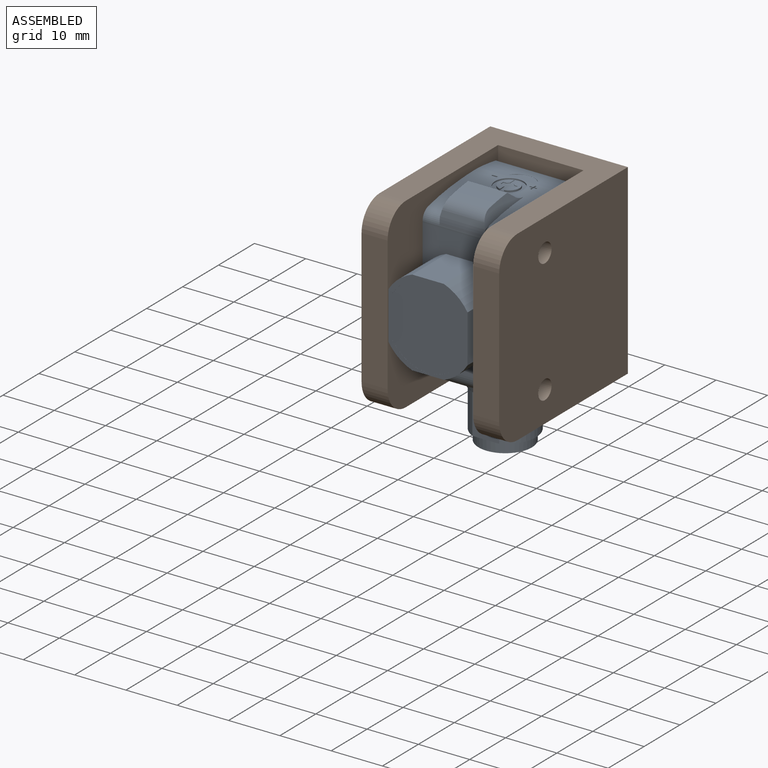
[diagram: assembled view]
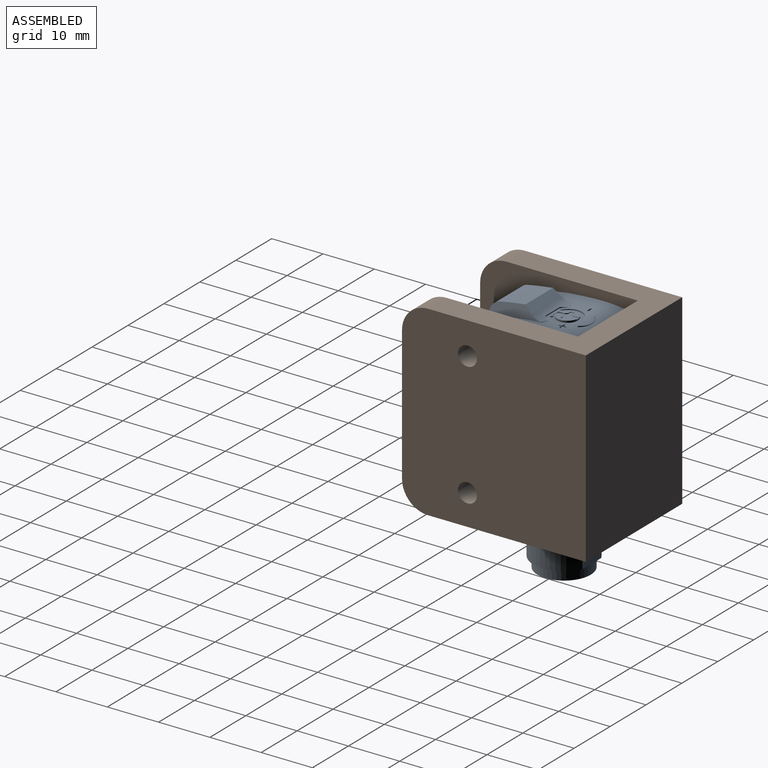
[diagram: assembled view, second angle]
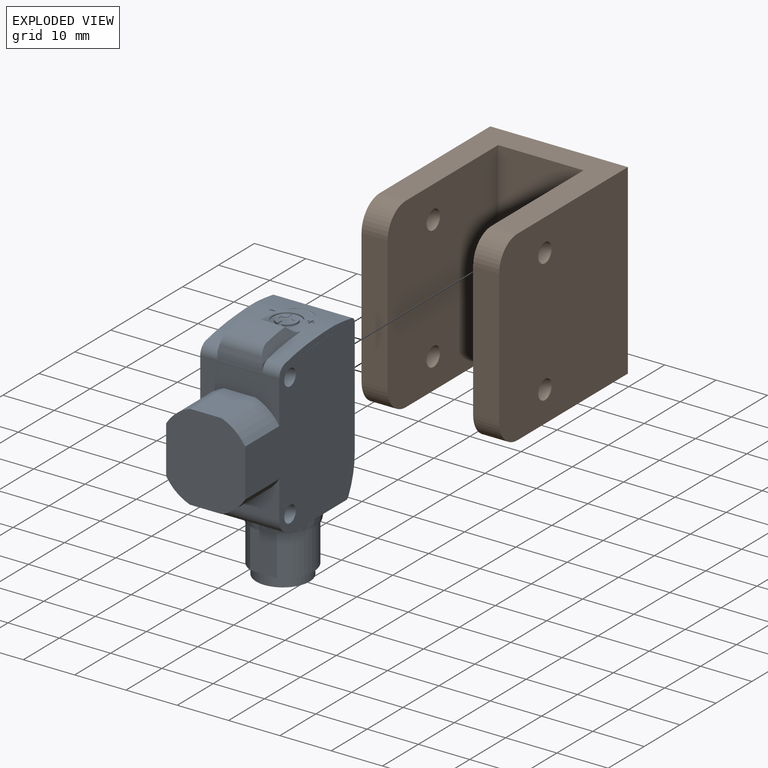
[diagram: exploded view]
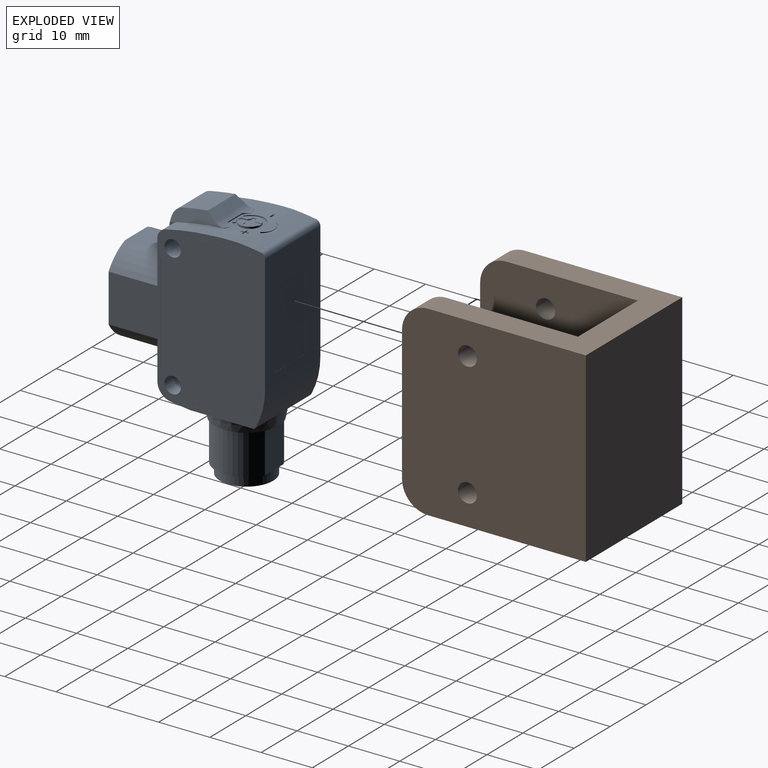
[diagram: exploded view, second angle]
ASSEMBLY  parts=2 mates=2
PART A: 270 faces, bbox 15.5x30.6x46.8 mm
  f0: cylinder r=4mm len=10mm, axis (0,0,-1), area 251.3mm2, adj f44,f127
  f1: cylinder r=2.05mm len=4.1mm, axis (0,0,1), area 4.3mm2, adj f10,f101,f254,f255,f261,f262,f263,f269
  f2: cylinder r=5.2mm len=10.4mm, axis (0,0,1), area 32.7mm2, adj f43,f44
  f3: cylinder r=5.25mm len=10.5mm, axis (0,0,1), area 33mm2, adj f42,f43
  f4: cone r=6.96mm half-angle=11.3deg, axis (0,0,1), area 105.6mm2, adj f22,f26,f27,f40
  f5: cylinder r=1.6mm len=15.4mm, axis (-1,0,0), area 154.8mm2, adj f16,f23
  f6: cylinder r=1.6mm len=15.4mm, axis (-1,0,0), area 154.8mm2, adj f16,f23
  f7: cylinder r=2.13mm len=3.29mm, axis (-1,0,0), area 9.9mm2, adj f14,f23,f32,f130
  f8: cylinder r=2.13mm len=3.29mm, axis (-1,0,0), area 9.9mm2, adj f12,f14,f16,f136
  f9: cylinder r=2.13mm len=8.8mm, axis (-1,0,0), area 3.6mm2, adj f131,f137,f245,f253
  f10: cylinder r=51.85mm len=4.1mm, axis (-1,0,0), area 4.9mm2, adj f1,f255,f256,f257,f258,f259,f260,f261
  f11: cylinder r=50.33mm len=5.36mm, axis (-1,0,0), area 3.1mm2, adj f13,f15,f18,f19,f97,f98,f99,f100
  f12: cylinder r=50.33mm len=9.06mm, axis (-1,0,0), area 30.2mm2, adj f8,f15,f16,f17,f134,f136,f137,f243
  f13: cylinder r=51.85mm len=7.25mm, axis (-1,0,0), area 24.8mm2, adj f11,f23,f31,f32,f100,f102,f103,f104
  f14: plane 15.4x8.09mm, normal (0,-1,0), area 53.7mm2, adj f7,f8,f16,f23,f33,f34,f35,f129
  f15: cylinder r=51.85mm len=7.65mm, axis (-1,0,0), area 27.3mm2, adj f11,f12,f16,f31,f100,f115,f116,f117
  f16: plane 32.01x30.5mm, normal (-1,0,0), area 712.6mm2, adj f5,f6,f8,f12,f14,f15,f20,f24
  f17: cylinder r=2.13mm len=0.02mm, axis (-1,0,0), area 0mm2, adj f12,f137,f243
  f18: cylinder r=51.85mm len=0.78mm, axis (-1,0,0), area 0.1mm2, adj f11,f97,f98
  f19: cylinder r=51.85mm len=0.78mm, axis (-1,0,0), area 0.1mm2, adj f11,f98,f99
  f20: plane 22.99x15.4mm, normal (0,1,0), area 215.1mm2, adj f16,f23,f29,f30,f52,f53,f54,f55
  f21: cylinder r=6mm len=10.8mm, axis (0,0,1), area 107.5mm2, adj f40,f42,f45,f46
  f22: plane 12.4x7.7mm, normal (0,0,-1), area 26mm2, adj f4,f23,f26,f28
  f23: plane 32.01x30.5mm, normal (1,0,0), area 202.3mm2, adj f5,f6,f7,f13,f14,f20,f22,f24
  f24: plane 15.4x7.39mm, normal (0,-1,0), area 68.8mm2, adj f16,f23,f25,f36,f37,f38
  f25: cylinder r=3mm len=15.4mm, axis (-1,0,0), area 66.8mm2, adj f16,f23,f24,f26
  f26: plane 15.48x3.85mm, normal (0,-0.12,-0.99), area 52.1mm2, adj f4,f16,f22,f23,f25,f27
  f27: plane 12.4x7.7mm, normal (0,0,-1), area 26mm2, adj f4,f16,f26,f28
  f28: cylinder r=1.25mm len=15.4mm, axis (-1,0,0), area 11.4mm2, adj f16,f22,f23,f27,f29
  f29: cylinder r=15mm len=15.4mm, axis (-1,0,0), area 111.2mm2, adj f16,f20,f23,f28
  f30: cylinder r=1mm len=15.4mm, axis (-1,0,0), area 21.9mm2, adj f16,f20,f23,f31
  f31: cylinder r=50.5mm len=15.4mm, axis (-1,0,0), area 67.5mm2, adj f13,f15,f16,f23,f30,f100,f120,f121
  f32: cylinder r=50.33mm len=9.06mm, axis (-1,0,0), area 30.2mm2, adj f7,f13,f23,f130
  f33: cylinder r=9mm len=9.5mm, axis (0,-1,0), area 57.7mm2, adj f14,f16,f34,f39
  f34: plane 9.5x6.2mm, normal (0,0,1), area 58.9mm2, adj f14,f33,f35,f39
  f35: cylinder r=9mm len=9.5mm, axis (0,-1,0), area 57.7mm2, adj f14,f23,f34,f39
  f36: cylinder r=9mm len=9.5mm, axis (0,-1,0), area 57.7mm2, adj f23,f24,f37,f39
  f37: plane 9.5x6.2mm, normal (0,0,-1), area 58.9mm2, adj f24,f36,f38,f39
  f38: cylinder r=9mm len=9.5mm, axis (0,-1,0), area 57.7mm2, adj f16,f24,f37,f39
  f39: plane 16.9x15.4mm, normal (0,-1,0), area 42.8mm2, adj f16,f23,f33,f34,f35,f36,f37,f38
  f40: plane 12.6x12.6mm, normal (0,0,-1), area 15.8mm2, adj f4,f21,f41,f45,f46
  f41: cylinder r=6mm len=10.8mm, axis (0,0,1), area 107.5mm2, adj f40,f42,f45,f46
  f42: plane 12x10.8mm, normal (0,0,-1), area 22.3mm2, adj f3,f21,f41,f45,f46
  f43: plane 10.5x10.5mm, normal (0,0,-1), area 1.6mm2, adj f2,f3
  f44: plane 10.4x10.4mm, normal (0,0,-1), area 34.7mm2, adj f0,f2
  f45: plane 8x5.23mm, normal (0,-1,0), area 41.8mm2, adj f21,f40,f41,f42
  f46: plane 8x5.23mm, normal (0,1,0), area 41.8mm2, adj f21,f40,f41,f42
  f47: cylinder r=8.05mm len=13.8mm, axis (0,-1,0), area 0.2mm2, adj f39,f48,f50,f51
  f48: plane 8.29x0.01mm, normal (-1,0,0), area 0.1mm2, adj f39,f47,f49,f51
  f49: cylinder r=8.05mm len=13.8mm, axis (0,-1,0), area 0.2mm2, adj f39,f48,f50,f51
  f50: plane 8.29x0.01mm, normal (1,0,0), area 0.1mm2, adj f39,f47,f49,f51
  f51: plane 16.1x13.8mm, normal (0,-1,0), area 190.7mm2, adj f47,f48,f49,f50
  f52: plane 13.59x0.01mm, normal (1,0,0), area 0.1mm2, adj f20,f53,f59,f60
  f53: extruded ~0.66x0.54mm, area 0mm2, adj f20,f52,f54,f60
  f54: plane 8.28x0.01mm, normal (0,0,1), area 0.1mm2, adj f20,f53,f55,f60
  f55: extruded ~1.09x0.53mm, area 0mm2, adj f20,f54,f56,f60
  f56: plane 12.72x0.01mm, normal (-1,0,0), area 0.1mm2, adj f20,f55,f57,f60
  f57: extruded ~1.09x0.53mm, area 0mm2, adj f20,f56,f58,f60
  f58: plane 8.28x0.01mm, normal (0,0,-1), area 0.1mm2, adj f20,f57,f59,f60
  f59: extruded ~0.66x0.54mm, area 0mm2, adj f20,f52,f58,f60
  f60: plane 14.9x9.35mm, normal (0,1,0), area 139mm2, adj f52,f53,f54,f55,f56,f57,f58,f59
  f61: cylinder r=0.45mm len=0.45mm, axis (1,0,0), area 0mm2, adj f23,f62,f77,f78
  f62: plane 22.43x0.01mm, normal (0,-1,0), area 0.2mm2, adj f23,f61,f63,f78
  f63: cylinder r=13.8mm len=6.39mm, axis (1,0,0), area 0.1mm2, adj f23,f62,f64,f78
  f64: cylinder r=0.45mm len=0.4mm, axis (1,0,0), area 0mm2, adj f23,f63,f65,f78
  f65: plane 12.18x0.01mm, normal (0,0,1), area 0.1mm2, adj f23,f64,f66,f78
  f66: cylinder r=0.45mm len=0.45mm, axis (1,0,0), area 0mm2, adj f23,f65,f67,f78
  f67: plane 2.15x0.01mm, normal (0,1,0), area 0mm2, adj f23,f66,f68,f78
  f68: cylinder r=2.2mm len=2.2mm, axis (1,0,0), area 0mm2, adj f23,f67,f69,f78
  f69: plane 1.9x0.01mm, normal (0,0,1), area 0mm2, adj f23,f68,f70,f78
  f70: cylinder r=0.45mm len=0.45mm, axis (1,0,0), area 0mm2, adj f23,f69,f71,f78
  f71: plane 18.8x0.01mm, normal (0,1,0), area 0.2mm2, adj f23,f70,f72,f78
  f72: cylinder r=0.45mm len=0.45mm, axis (1,0,0), area 0mm2, adj f23,f71,f73,f78
  f73: plane 1.9x0.01mm, normal (0,0,-1), area 0mm2, adj f23,f72,f74,f78
  f74: cylinder r=2.2mm len=2.2mm, axis (1,0,0), area 0mm2, adj f23,f73,f75,f78
  f75: plane 2.27x0.01mm, normal (0,1,0), area 0mm2, adj f23,f74,f76,f78
  f76: cylinder r=0.45mm len=0.45mm, axis (1,0,0), area 0mm2, adj f23,f75,f77,f78
  f77: cylinder r=49.3mm len=13.83mm, axis (1,0,0), area 0.1mm2, adj f23,f61,f76,f78
  f78: plane 29.95x19.15mm, normal (1,0,0), area 9.3mm2, adj f61,f62,f63,f64,f65,f66,f67,f68
  f79: cylinder r=0.35mm len=0.35mm, axis (1,0,0), area 0mm2, adj f78,f80,f95,f96
  f80: plane 22.43x0.01mm, normal (0,1,0), area 0.2mm2, adj f78,f79,f81,f96
  f81: cylinder r=13.7mm len=6.35mm, axis (1,0,0), area 0.1mm2, adj f78,f80,f82,f96
  f82: cylinder r=0.35mm len=0.31mm, axis (1,0,0), area 0mm2, adj f78,f81,f83,f96
  f83: plane 12.18x0.01mm, normal (0,0,-1), area 0.1mm2, adj f78,f82,f84,f96
  f84: cylinder r=0.35mm len=0.35mm, axis (1,0,0), area 0mm2, adj f78,f83,f85,f96
  f85: plane 2.15x0.01mm, normal (0,-1,0), area 0mm2, adj f78,f84,f86,f96
  f86: cylinder r=2.3mm len=2.3mm, axis (1,0,0), area 0mm2, adj f78,f85,f87,f96
  f87: plane 1.9x0.01mm, normal (0,0,-1), area 0mm2, adj f78,f86,f88,f96
  f88: cylinder r=0.35mm len=0.35mm, axis (1,0,0), area 0mm2, adj f78,f87,f89,f96
  f89: plane 18.8x0.01mm, normal (0,-1,0), area 0.2mm2, adj f78,f88,f90,f96
  f90: cylinder r=0.35mm len=0.35mm, axis (1,0,0), area 0mm2, adj f78,f89,f91,f96
  f91: plane 1.9x0.01mm, normal (0,0,1), area 0mm2, adj f78,f90,f92,f96
  f92: cylinder r=2.3mm len=2.3mm, axis (1,0,0), area 0mm2, adj f78,f91,f93,f96
  f93: plane 2.27x0.01mm, normal (0,-1,0), area 0mm2, adj f78,f92,f94,f96
  f94: cylinder r=0.35mm len=0.35mm, axis (1,0,0), area 0mm2, adj f78,f93,f95,f96
  f95: cylinder r=49.2mm len=13.8mm, axis (1,0,0), area 0.1mm2, adj f78,f79,f94,f96
  f96: plane 29.75x18.95mm, normal (1,0,0), area 513.2mm2, adj f79,f80,f81,f82,f83,f84,f85,f86
  f97: plane 0.41x0.29mm, normal (0.81,0.59,0), area 0.1mm2, adj f11,f18,f98,f100,f101
  f98: cylinder r=2.3mm len=2.37mm, axis (0,0,1), area 0.3mm2, adj f11,f18,f19,f97,f99,f101
  f99: plane 0.41x0.29mm, normal (-0.81,0.59,0), area 0.1mm2, adj f11,f19,f98,f100,f101
  f100: cylinder r=2.8mm len=5.6mm, axis (0,0,1), area 3.2mm2, adj f11,f13,f15,f31,f97,f99,f101
  f101: plane 5.6x5.18mm, normal (0,0,1), area 10mm2, adj f1,f97,f98,f99,f100
  f102: plane 0.27x0.25mm, normal (0,1,0), area 0.1mm2, adj f13,f103,f113,f114
  f103: plane 0.58x0.26mm, normal (1,0,0), area 0.1mm2, adj f13,f102,f104,f114
  f104: plane 0.58x0.26mm, normal (0,1,0), area 0.1mm2, adj f13,f103,f105,f114
  f105: plane 0.27x0.26mm, normal (1,0,0), area 0.1mm2, adj f13,f104,f106,f114
  f106: plane 0.58x0.26mm, normal (0,-1,0), area 0.1mm2, adj f13,f105,f107,f114
  f107: plane 0.58x0.26mm, normal (1,0,0), area 0.2mm2, adj f13,f106,f108,f114
  f108: plane 0.27x0.26mm, normal (0,-1,0), area 0.1mm2, adj f13,f107,f109,f114
  f109: plane 0.58x0.26mm, normal (-1,0,0), area 0.2mm2, adj f13,f108,f110,f114
  f110: plane 0.58x0.26mm, normal (0,-1,0), area 0.1mm2, adj f13,f109,f111,f114
  f111: plane 0.27x0.26mm, normal (-1,0,0), area 0.1mm2, adj f13,f110,f112,f114
  f112: plane 0.58x0.26mm, normal (0,1,0), area 0.1mm2, adj f13,f111,f113,f114
  f113: plane 0.58x0.26mm, normal (-1,0,0), area 0.1mm2, adj f13,f102,f112,f114
  f114: plane 1.43x1.42mm, normal (0,0,1), area 0.7mm2, adj f102,f103,f104,f105,f106,f107,f108,f109
  f115: plane 1.05x0.26mm, normal (0,-1,0), area 0.3mm2, adj f15,f116,f118,f119
  f116: plane 0.32x0.26mm, normal (-1,0,0), area 0.1mm2, adj f15,f115,f117,f119
  f117: plane 1.05x0.26mm, normal (0,1,0), area 0.3mm2, adj f15,f116,f118,f119
  f118: plane 0.32x0.26mm, normal (1,0,0), area 0.1mm2, adj f15,f115,f117,f119
  f119: plane 1.05x0.32mm, normal (0,0,1), area 0.3mm2, adj f115,f116,f117,f118
  f120: extruded ~2.38x1.17mm, area 0.2mm2, adj f31,f121,f125,f126
  f121: plane 0.66x0.62mm, normal (-0.69,0.73,0), area 0.2mm2, adj f31,f120,f122,f126
  f122: extruded ~2.11x1.15mm, area 0.3mm2, adj f31,f121,f123,f126
  f123: extruded ~2.29x1.12mm, area 0.3mm2, adj f31,f122,f124,f126
  f124: extruded ~0.19x0.05mm, area 0mm2, adj f31,f123,f125,f126
  f125: extruded ~2.73x1.75mm, area 0.3mm2, adj f31,f120,f124,f126
  f126: plane 5.11x1.8mm, normal (0,0,1), area 3.2mm2, adj f120,f121,f122,f123,f124,f125
  f127: plane 8x8mm, normal (0,0,-1), area 50.3mm2, adj f0
  f128: plane 1.13x0.01mm, normal (0,-1,0), area 0mm2, adj f13,f130,f131,f132
  f129: plane 1.01x0.01mm, normal (0,0,1), area 0mm2, adj f14,f130,f131,f133
  f130: plane 10.62x7.24mm, normal (-1,0,0), area 15.5mm2, adj f7,f13,f14,f32,f128,f129,f132,f133
  f131: plane 10.62x7.24mm, normal (1,0,0), area 16mm2, adj f9,f13,f128,f129,f132,f133,f245,f246
  f132: cylinder r=50.33mm len=9.59mm, axis (-1,0,0), area 0.1mm2, adj f128,f130,f131,f133
  f133: plane 4.78x0.01mm, normal (0,-1,0), area 0mm2, adj f129,f130,f131,f132
  f134: plane 1.13x0.01mm, normal (0,-1,0), area 0mm2, adj f12,f136,f137,f138
  f135: plane 1.01x0.01mm, normal (0,0,1), area 0mm2, adj f14,f136,f137,f139
  f136: plane 10.4x7.23mm, normal (1,0,0), area 15.3mm2, adj f8,f12,f14,f134,f135,f138,f139
  f137: plane 10.4x7.23mm, normal (-1,0,0), area 15.8mm2, adj f9,f12,f17,f134,f135,f138,f139,f243
  f138: cylinder r=50.33mm len=9.38mm, axis (1,0,0), area 0.1mm2, adj f134,f136,f137,f139
  f139: plane 4.78x0.01mm, normal (0,-1,0), area 0mm2, adj f135,f136,f137,f138
  f140: extruded ~0.16x0.09mm, area 0mm2, adj f16,f141,f151,f152
  f141: plane 0.87x0.01mm, normal (0,-1,0), area 0mm2, adj f16,f140,f142,f152
  f142: extruded ~0.16x0.09mm, area 0mm2, adj f16,f141,f143,f152
  f143: plane 0.65x0.01mm, normal (0,0,-1), area 0mm2, adj f16,f142,f144,f152
  f144: cylinder r=948.99mm len=0.39mm, axis (1,0,0), area 0mm2, adj f16,f143,f145,f152
  f145: plane 1.13x0.01mm, normal (0,0,1), area 0mm2, adj f16,f144,f146,f152
  f146: extruded ~0.5x0.27mm, area 0mm2, adj f16,f145,f147,f152
  f147: plane 0.96x0.01mm, normal (0,1,0), area 0mm2, adj f16,f146,f148,f152
  f148: extruded ~0.5x0.27mm, area 0mm2, adj f16,f147,f149,f152
  f149: plane 1.12x0.01mm, normal (0,0,-1), area 0mm2, adj f16,f148,f150,f152
  f150: plane 0.39x0.01mm, normal (0,-1,0), area 0mm2, adj f16,f149,f151,f152
  f151: plane 0.93x0.01mm, normal (0,0,1), area 0mm2, adj f16,f140,f150,f152
  f152: plane 1.97x1.4mm, normal (-1,0,0), area 1.4mm2, adj f140,f141,f142,f143,f144,f145,f146,f147
  f153: plane 2.06x1.42mm, normal (0,-0.82,-0.57), area 0mm2, adj f16,f154,f156,f157
  f154: plane 1.15x0.01mm, normal (0,0,1), area 0mm2, adj f16,f153,f155,f157
  f155: extruded ~0.5x0.27mm, area 0mm2, adj f16,f154,f156,f157
  f156: plane 1.56x0.01mm, normal (0,1,0), area 0mm2, adj f16,f153,f155,f157
  f157: plane 2.06x1.42mm, normal (-1,0,0), area 1.4mm2, adj f153,f154,f155,f156
  f158: cylinder r=952.12mm len=0.39mm, axis (1,0,0), area 0mm2, adj f16,f159,f173,f174
  f159: plane 1.16x0.01mm, normal (0,0,1), area 0mm2, adj f16,f158,f160,f174
  f160: extruded ~0.5x0.27mm, area 0mm2, adj f16,f159,f161,f174
  f161: plane 0.97x0.01mm, normal (0,1,0), area 0mm2, adj f16,f160,f162,f174
  f162: extruded ~0.5x0.27mm, area 0mm2, adj f16,f161,f163,f174
  f163: plane 1.15x0.01mm, normal (0,0,-1), area 0mm2, adj f16,f162,f164,f174
  f164: plane 0.39x0.01mm, normal (0,-1,0), area 0mm2, adj f16,f163,f165,f174
  f165: plane 0.93x0.01mm, normal (0,0,1), area 0mm2, adj f16,f164,f166,f174
  f166: extruded ~0.17x0.09mm, area 0mm2, adj f16,f165,f167,f174
  f167: plane 0.27x0.01mm, normal (0,-1,0), area 0mm2, adj f16,f166,f168,f174
  f168: plane 0.95x0.01mm, normal (0,0,-1), area 0mm2, adj f16,f167,f169,f174
  f169: plane 0.33x0.01mm, normal (0,-1,0), area 0mm2, adj f16,f168,f170,f174
  f170: plane 0.95x0.01mm, normal (0,0,1), area 0mm2, adj f16,f169,f171,f174
  f171: plane 0.27x0.01mm, normal (0,-1,0), area 0mm2, adj f16,f170,f172,f174
  f172: extruded ~0.16x0.09mm, area 0mm2, adj f16,f171,f173,f174
  f173: plane 0.66x0.01mm, normal (0,0,-1), area 0mm2, adj f16,f158,f172,f174
  f174: plane 1.97x1.43mm, normal (-1,0,0), area 1.8mm2, adj f158,f159,f160,f161,f162,f163,f164,f165
  f175: plane 0.39x0.01mm, normal (0,-1,0), area 0mm2, adj f16,f176,f190,f191
  f176: plane 0.93x0.01mm, normal (0,0,1), area 0mm2, adj f16,f175,f177,f191
  f177: extruded ~0.17x0.09mm, area 0mm2, adj f16,f176,f178,f191
  f178: plane 0.27x0.01mm, normal (0,-1,0), area 0mm2, adj f16,f177,f179,f191
  f179: plane 0.95x0.01mm, normal (0,0,-1), area 0mm2, adj f16,f178,f180,f191
  f180: plane 0.33x0.01mm, normal (0,-1,0), area 0mm2, adj f16,f179,f181,f191
  f181: plane 0.95x0.01mm, normal (0,0,1), area 0mm2, adj f16,f180,f182,f191
  f182: plane 0.27x0.01mm, normal (0,-1,0), area 0mm2, adj f16,f181,f183,f191
  f183: extruded ~0.16x0.09mm, area 0mm2, adj f16,f182,f184,f191
  f184: plane 0.66x0.01mm, normal (0,0,-1), area 0mm2, adj f16,f183,f185,f191
  f185: cylinder r=951.75mm len=0.39mm, axis (1,0,0), area 0mm2, adj f16,f184,f186,f191
  f186: plane 1.16x0.01mm, normal (0,0,1), area 0mm2, adj f16,f185,f187,f191
  f187: extruded ~0.5x0.27mm, area 0mm2, adj f16,f186,f188,f191
  f188: plane 0.97x0.01mm, normal (0,1,0), area 0mm2, adj f16,f187,f189,f191
  f189: extruded ~0.5x0.27mm, area 0mm2, adj f16,f188,f190,f191
  f190: plane 1.15x0.01mm, normal (0,0,-1), area 0mm2, adj f16,f175,f189,f191
  f191: plane 1.97x1.43mm, normal (-1,0,0), area 1.8mm2, adj f175,f176,f177,f178,f179,f180,f181,f182
  f192: cylinder r=951.16mm len=0.4mm, axis (1,0,0), area 0mm2, adj f16,f193,f207,f208
  f193: plane 1.17x0.01mm, normal (0,0,1), area 0mm2, adj f16,f192,f194,f208
  f194: extruded ~0.51x0.28mm, area 0mm2, adj f16,f193,f195,f208
  f195: plane 0.97x0.01mm, normal (0,1,0), area 0mm2, adj f16,f194,f196,f208
  f196: extruded ~0.51x0.28mm, area 0mm2, adj f16,f195,f197,f208
  f197: plane 1.15x0.01mm, normal (0,0,-1), area 0mm2, adj f16,f196,f198,f208
  f198: plane 0.4x0.01mm, normal (0,-1,0), area 0mm2, adj f16,f197,f199,f208
  f199: plane 0.94x0.01mm, normal (0,0,1), area 0mm2, adj f16,f198,f200,f208
  f200: extruded ~0.16x0.08mm, area 0mm2, adj f16,f199,f201,f208
  f201: plane 0.26x0.01mm, normal (0,-1,0), area 0mm2, adj f16,f200,f202,f208
  f202: plane 0.95x0.01mm, normal (0,0,-1), area 0mm2, adj f16,f201,f203,f208
  f203: plane 0.34x0.01mm, normal (0,-1,0), area 0mm2, adj f16,f202,f204,f208
  f204: plane 0.95x0.01mm, normal (0,0,1), area 0mm2, adj f16,f203,f205,f208
  f205: plane 0.26x0.01mm, normal (0,-1,0), area 0mm2, adj f16,f204,f206,f208
  f206: extruded ~0.15x0.08mm, area 0mm2, adj f16,f205,f207,f208
  f207: plane 0.66x0.01mm, normal (0,0,-1), area 0mm2, adj f16,f192,f206,f208
  f208: plane 1.98x1.45mm, normal (-1,0,0), area 1.8mm2, adj f192,f193,f194,f195,f196,f197,f198,f199
  f209: cylinder r=1074.7mm len=1.01mm, axis (-1,0,0), area 0mm2, adj f16,f210,f214,f215
  f210: cylinder r=972.45mm len=0.95mm, axis (1,0,0), area 0mm2, adj f16,f209,f211,f215
  f211: plane 0.44x0.01mm, normal (0,0,1), area 0mm2, adj f16,f210,f212,f215
  f212: cylinder r=974.5mm len=0.98mm, axis (-1,0,0), area 0mm2, adj f16,f211,f213,f215
  f213: cylinder r=1067.85mm len=0.99mm, axis (1,0,0), area 0mm2, adj f16,f212,f214,f215
  f214: plane 0.46x0.01mm, normal (0,0,-1), area 0mm2, adj f16,f209,f213,f215
  f215: plane 1.97x1.17mm, normal (-1,0,0), area 0.9mm2, adj f209,f210,f211,f212,f213,f214
  f216: plane 0.32x0.01mm, normal (0,0,1), area 0mm2, adj f16,f217,f224,f225
  f217: cylinder r=984.58mm len=1.01mm, axis (1,0,0), area 0mm2, adj f16,f216,f218,f225
  f218: plane 0.96x0.01mm, normal (0,1,0), area 0mm2, adj f16,f217,f219,f225
  f219: plane 0.37x0.01mm, normal (0,0,-1), area 0mm2, adj f16,f218,f220,f225
  f220: plane 0.96x0.01mm, normal (0,-1,0), area 0mm2, adj f16,f219,f221,f225
  f221: cylinder r=984.53mm len=1.01mm, axis (1,0,0), area 0mm2, adj f16,f220,f222,f225
  f222: plane 0.32x0.01mm, normal (0,0,1), area 0mm2, adj f16,f221,f223,f225
  f223: cylinder r=973.84mm len=0.78mm, axis (-1,0,0), area 0mm2, adj f16,f222,f224,f225
  f224: cylinder r=974.13mm len=0.78mm, axis (-1,0,0), area 0mm2, adj f16,f216,f223,f225
  f225: plane 1.97x1.66mm, normal (-1,0,0), area 1mm2, adj f216,f217,f218,f219,f220,f221,f222,f223
  f226: plane 1.97x0.01mm, normal (0,-1,0), area 0mm2, adj f16,f227,f235,f236
  f227: plane 0.37x0.01mm, normal (0,0,1), area 0mm2, adj f16,f226,f228,f236
  f228: plane 1.18x0.01mm, normal (0,1,0), area 0mm2, adj f16,f227,f229,f236
  f229: cylinder r=981.37mm len=1.18mm, axis (-1,0,0), area 0mm2, adj f16,f228,f230,f236
  f230: plane 0.36x0.01mm, normal (0,0,1), area 0mm2, adj f16,f229,f231,f236
  f231: plane 1.97x0.01mm, normal (0,1,0), area 0mm2, adj f16,f230,f232,f236
  f232: plane 0.37x0.01mm, normal (0,0,-1), area 0mm2, adj f16,f231,f233,f236
  f233: plane 1.33x0.01mm, normal (0,-1,0), area 0mm2, adj f16,f232,f234,f236
  f234: cylinder r=1044.69mm len=1.33mm, axis (1,0,0), area 0mm2, adj f16,f233,f235,f236
  f235: plane 0.34x0.01mm, normal (0,0,-1), area 0mm2, adj f16,f226,f234,f236
  f236: plane 1.97x1.58mm, normal (-1,0,0), area 2mm2, adj f226,f227,f228,f229,f230,f231,f232,f233
  f237: plane 1.5x0.47mm, normal (0,0,1), area 0.3mm2, adj f242,f244,f248
  f238: plane 1.53x0.58mm, normal (0,0,1), area 0.5mm2, adj f242,f246,f247,f249,f250
  f239: cylinder r=2.5mm len=8.28mm, axis (-1,0,0), area 20.9mm2, adj f240,f243,f245,f246
  f240: cylinder r=52.7mm len=7.65mm, axis (-1,0,0), area 38.9mm2, adj f239,f241,f243,f246
  f241: plane 8.4x1.72mm, normal (0,0.62,0.79), area 17.5mm2, adj f240,f242,f243,f246
  f242: cylinder r=3.02mm len=8.76mm, axis (-1,0,0), area 12.8mm2, adj f237,f238,f241,f243,f244,f246,f248,f249
  f243: revolved ~10.78x4mm, area 19.4mm2, adj f12,f17,f137,f239,f240,f241,f242,f244
  f244: plane 1.61x0.64mm, normal (-0.37,0.93,0), area 0.1mm2, adj f12,f15,f237,f242,f243,f248
  f245: cylinder r=10.73mm len=8.8mm, axis (-1,0,0), area 22.9mm2, adj f9,f131,f137,f239,f243,f246
  f246: revolved ~11x4.01mm, area 19.4mm2, adj f13,f131,f238,f239,f240,f241,f242,f245
  f247: plane 0.94x0.51mm, normal (0.47,0.88,0), area 0mm2, adj f13,f238,f246,f250
  f248: extruded ~1.12x1.06mm, area 0.2mm2, adj f11,f15,f237,f242,f244,f251
  f249: extruded ~1.13x1.06mm, area 0.2mm2, adj f11,f13,f238,f242,f250,f251
  f250: cylinder r=0.2mm len=0.27mm, axis (0,0,-1), area 0mm2, adj f13,f238,f247,f249
  f251: plane 3.86x0.2mm, normal (0,1,0), area 0.8mm2, adj f11,f242,f248,f249
  f252: cylinder r=10mm len=8.8mm, axis (0,-1,0), area 0mm2, adj f14,f253
  f253: plane 8.86x3.73mm, normal (0,-1,0), area 26.3mm2, adj f9,f14,f131,f137,f252
  f254: plane 4.03x1.68mm, normal (0,0,1), area 4.1mm2, adj f1,f255,f256,f257,f258,f259,f260,f261
  f255: plane 1.24x0.1mm, normal (-1,0,0), area 0.1mm2, adj f1,f10,f254,f256
  f256: plane 0.4x0.4mm, normal (-0.71,-0.71,0), area 0.1mm2, adj f10,f254,f255,f257
  f257: plane 0.63x0.11mm, normal (0,-1,0), area 0.1mm2, adj f10,f254,f256,f258
  f258: plane 0.75x0.13mm, normal (-1,0,0), area 0.1mm2, adj f10,f254,f257,f259
  f259: plane 0.63x0.13mm, normal (0,1,0), area 0.1mm2, adj f10,f254,f258,f260
  f260: plane 0.4x0.4mm, normal (-0.71,0.71,0), area 0.1mm2, adj f10,f254,f259,f261
  f261: plane 1.24x0.23mm, normal (-1,0,0), area 0.2mm2, adj f1,f10,f254,f260
  f262: plane 4.03x1.68mm, normal (0,0,1), area 4.1mm2, adj f1,f263,f264,f265,f266,f267,f268,f269
  f263: plane 1.24x0.1mm, normal (1,0,0), area 0.1mm2, adj f1,f10,f262,f264
  f264: plane 0.4x0.4mm, normal (0.71,-0.71,0), area 0.1mm2, adj f10,f262,f263,f265
  f265: plane 0.63x0.11mm, normal (0,-1,0), area 0.1mm2, adj f10,f262,f264,f266
  f266: plane 0.75x0.13mm, normal (1,0,0), area 0.1mm2, adj f10,f262,f265,f267
  f267: plane 0.63x0.13mm, normal (0,1,0), area 0.1mm2, adj f10,f262,f266,f268
  f268: plane 0.4x0.4mm, normal (0.71,0.71,0), area 0.1mm2, adj f10,f262,f267,f269
  f269: plane 1.24x0.23mm, normal (1,0,0), area 0.2mm2, adj f1,f10,f262,f268
PART B: 18 faces, bbox 26.8x35.8x36.4 mm
  f0: plane 26.22x5.08mm, normal (0,-1,0), area 133.2mm2, adj f6,f12,f14,f15
  f1: cylinder r=1.85mm len=5.08mm, axis (1,0,0), area 59.2mm2, adj f4,f11
  f2: plane 30.75x26.83mm, normal (0,0,1), area 397.1mm2, adj f4,f6,f9,f11,f12,f13,f15,f17
  f3: cylinder r=1.85mm len=5.08mm, axis (1,0,0), area 59.2mm2, adj f4,f11
  f4: plane 36.38x35.83mm, normal (-1,0,0), area 1271mm2, adj f1,f2,f3,f5,f8,f9,f16,f17
  f5: plane 30.75x26.83mm, normal (0,0,-1), area 397.1mm2, adj f4,f6,f9,f11,f12,f13,f14,f16
  f6: plane 36.38x35.83mm, normal (1,0,0), area 1271mm2, adj f0,f2,f5,f7,f9,f10,f14,f15
  f7: cylinder r=1.85mm len=5.08mm, axis (1,0,0), area 59.2mm2, adj f6,f12
  f8: plane 26.22x5.08mm, normal (0,-1,0), area 133.2mm2, adj f4,f11,f16,f17
  f9: plane 36.38x26.83mm, normal (0,1,0), area 976.1mm2, adj f2,f4,f5,f6
  f10: cylinder r=1.85mm len=5.08mm, axis (1,0,0), area 59.2mm2, adj f6,f12
  f11: plane 36.38x30.75mm, normal (1,0,0), area 1086.2mm2, adj f1,f2,f3,f5,f8,f13,f16,f17
  f12: plane 36.38x30.75mm, normal (-1,0,0), area 1086.2mm2, adj f0,f2,f5,f7,f10,f13,f14,f15
  f13: plane 36.38x16.67mm, normal (0,-1,0), area 606.5mm2, adj f2,f5,f11,f12
  f14: cylinder r=5.08mm len=5.08mm, axis (-1,0,0), area 40.5mm2, adj f0,f5,f6,f12
  f15: cylinder r=5.08mm len=5.08mm, axis (1,0,0), area 40.5mm2, adj f0,f2,f6,f12
  f16: cylinder r=5.08mm len=5.08mm, axis (-1,0,0), area 40.5mm2, adj f4,f5,f8,f11
  f17: cylinder r=5.08mm len=5.08mm, axis (1,0,0), area 40.5mm2, adj f2,f4,f8,f11
PLACE A t=(-13.5,-20.91,12.83)mm
PLACE B t=(-7.15,-20.91,12.83)mm fixed
MATE parallel A.f33 <-> B.f8  axis (0,-1,0) through (-13.5,-20.9,12.83)mm
MATE revolute A.f5 <-> B.f1  axis (-1,0,0) through (-21.2,-8.41,24.93)mm
